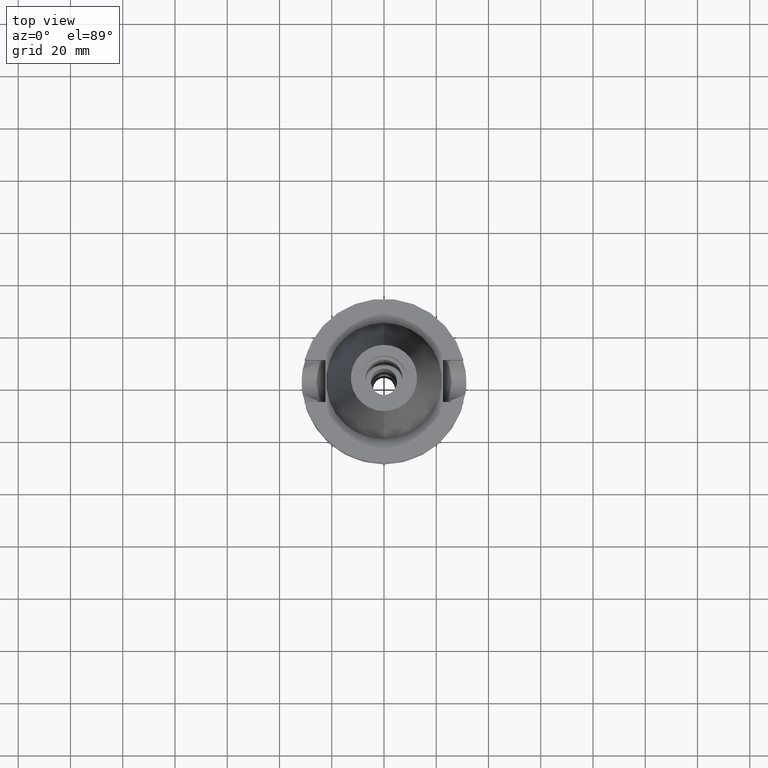
[diagram: clean part render]
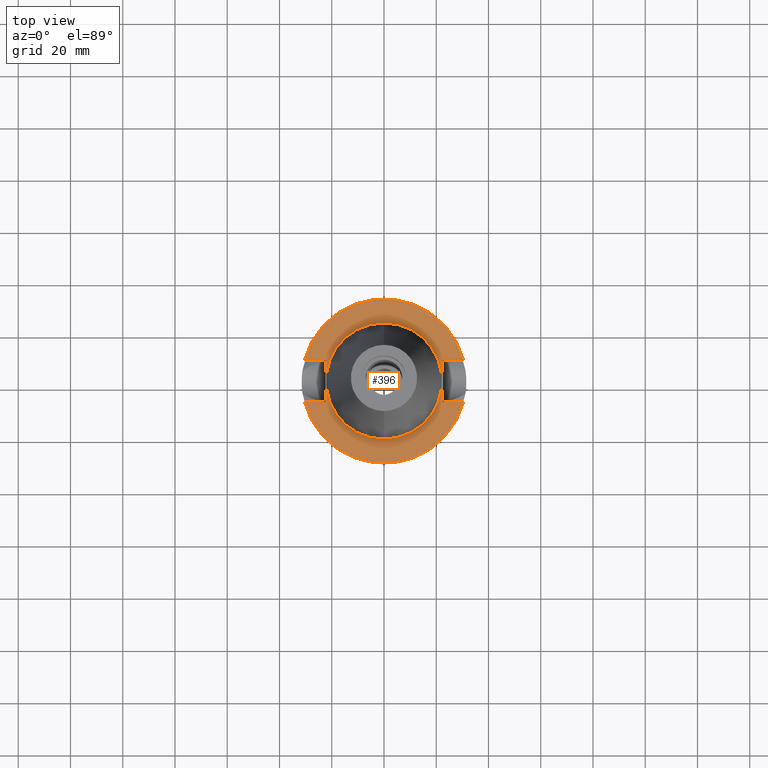
[diagram: same view with one face highlighted and labeled with its STEP entity id]
A machine part, top view. The second image highlights one B-rep face of the part: STEP entity #396.
In plain terms, the highlighted planar face has unit normal (0, 0, -1).
Its self-contained STEP definition (entity closure, byte-faithful):
#44 = ORIENTED_EDGE ( 'NONE', *, *, #3236, .F. ) ;
#79 = DIRECTION ( 'NONE',  ( 0.0000000000000000000, 0.0000000000000000000, 1.000000000000000000 ) ) ;
#85 = DIRECTION ( 'NONE',  ( 0.0000000000000000000, 0.0000000000000000000, -1.000000000000000000 ) ) ;
#111 = CARTESIAN_POINT ( 'NONE',  ( 0.0000000000000000000, 2.184402495638999836E-14, -2.000000000000000000 ) ) ;
#147 = ORIENTED_EDGE ( 'NONE', *, *, #776, .F. ) ;
#204 = VECTOR ( 'NONE', #2801, 1000.000000000000000 ) ;
#213 = VECTOR ( 'NONE', #728, 1000.000000000000000 ) ;
#353 = DIRECTION ( 'NONE',  ( 0.0000000000000000000, -1.000000000000000000, 0.0000000000000000000 ) ) ;
#396 = ADVANCED_FACE ( 'NONE', ( #2840, #611 ), #2281, .F. ) ;
#399 = EDGE_CURVE ( 'NONE', #1183, #1248, #708, .T. ) ;
#563 = AXIS2_PLACEMENT_3D ( 'NONE', #2775, #1332, #3304 ) ;
#611 = FACE_BOUND ( 'NONE', #3243, .T. ) ;
#633 = CARTESIAN_POINT ( 'NONE',  ( 0.0000000000000000000, 2.184402495638999836E-14, -2.000000000000000000 ) ) ;
#695 = VECTOR ( 'NONE', #3052, 1000.000000000000000 ) ;
#708 = CIRCLE ( 'NONE', #2419, 31.50000000000000000 ) ;
#728 = DIRECTION ( 'NONE',  ( 1.000000000000000000, 3.573249715389999860E-14, 0.0000000000000000000 ) ) ;
#776 = EDGE_CURVE ( 'NONE', #3167, #1708, #3395, .T. ) ;
#817 = ORIENTED_EDGE ( 'NONE', *, *, #2585, .F. ) ;
#881 = DIRECTION ( 'NONE',  ( 0.0000000000000000000, -1.000000000000000000, 0.0000000000000000000 ) ) ;
#950 = DIRECTION ( 'NONE',  ( 0.0000000000000000000, 1.000000000000000000, 0.0000000000000000000 ) ) ;
#977 = EDGE_CURVE ( 'NONE', #1312, #1248, #2633, .T. ) ;
#1016 = CARTESIAN_POINT ( 'NONE',  ( 0.0000000000000000000, 22.22500000000000142, -2.000000000000000000 ) ) ;
#1038 = AXIS2_PLACEMENT_3D ( 'NONE', #111, #1842, #2937 ) ;
#1183 = VERTEX_POINT ( 'NONE', #3413 ) ;
#1241 = CARTESIAN_POINT ( 'NONE',  ( 22.50000000000000000, -8.050000000000000711, -2.000000000000000000 ) ) ;
#1248 = VERTEX_POINT ( 'NONE', #1956 ) ;
#1307 = ORIENTED_EDGE ( 'NONE', *, *, #2188, .F. ) ;
#1312 = VERTEX_POINT ( 'NONE', #3162 ) ;
#1332 = DIRECTION ( 'NONE',  ( 0.0000000000000000000, 0.0000000000000000000, -1.000000000000000000 ) ) ;
#1340 = CARTESIAN_POINT ( 'NONE',  ( 30.45402272279000044, 8.050000000000000711, -2.000000000000000000 ) ) ;
#1385 = CARTESIAN_POINT ( 'NONE',  ( -22.50000000000000000, 8.050000000000000711, -2.000000000000000000 ) ) ;
#1386 = VECTOR ( 'NONE', #3341, 1000.000000000000000 ) ;
#1544 = ORIENTED_EDGE ( 'NONE', *, *, #2744, .F. ) ;
#1558 = DIRECTION ( 'NONE',  ( 1.000000000000000000, -3.506251283225999947E-14, 0.0000000000000000000 ) ) ;
#1610 = CARTESIAN_POINT ( 'NONE',  ( -22.50000000000000000, -8.050000000000000711, -2.000000000000000000 ) ) ;
#1663 = VERTEX_POINT ( 'NONE', #1340 ) ;
#1708 = VERTEX_POINT ( 'NONE', #3312 ) ;
#1726 = CARTESIAN_POINT ( 'NONE',  ( 0.0000000000000000000, 2.184402495638999836E-14, -2.000000000000000000 ) ) ;
#1842 = DIRECTION ( 'NONE',  ( 0.0000000000000000000, 0.0000000000000000000, 1.000000000000000000 ) ) ;
#1924 = AXIS2_PLACEMENT_3D ( 'NONE', #1726, #79, #950 ) ;
#1956 = CARTESIAN_POINT ( 'NONE',  ( -30.45402272279000044, -8.050000000000000711, -2.000000000000000000 ) ) ;
#2058 = ORIENTED_EDGE ( 'NONE', *, *, #2608, .T. ) ;
#2071 = CARTESIAN_POINT ( 'NONE',  ( 22.50000000000000000, -8.050000000000000711, -2.000000000000000000 ) ) ;
#2073 = EDGE_LOOP ( 'NONE', ( #2719, #2077, #817, #3517, #2058, #2440, #44, #1307 ) ) ;
#2077 = ORIENTED_EDGE ( 'NONE', *, *, #399, .F. ) ;
#2110 = CARTESIAN_POINT ( 'NONE',  ( 22.50000000000000000, 8.050000000000000711, -2.000000000000000000 ) ) ;
#2127 = CARTESIAN_POINT ( 'NONE',  ( 22.50000000000000000, 8.050000000000000711, -2.000000000000000000 ) ) ;
#2146 = CIRCLE ( 'NONE', #563, 31.50000000000000000 ) ;
#2154 = VECTOR ( 'NONE', #1558, 1000.000000000000000 ) ;
#2188 = EDGE_CURVE ( 'NONE', #1312, #2994, #3561, .T. ) ;
#2281 = PLANE ( 'NONE',  #3410 ) ;
#2328 = LINE ( 'NONE', #2110, #2154 ) ;
#2345 = CARTESIAN_POINT ( 'NONE',  ( -22.50000000000000000, 8.050000000000000711, -2.000000000000000000 ) ) ;
#2378 = CARTESIAN_POINT ( 'NONE',  ( -30.45402272279000044, 8.050000000000000711, -2.000000000000000000 ) ) ;
#2419 = AXIS2_PLACEMENT_3D ( 'NONE', #633, #85, #881 ) ;
#2437 = VECTOR ( 'NONE', #2511, 1000.000000000000000 ) ;
#2440 = ORIENTED_EDGE ( 'NONE', *, *, #3121, .F. ) ;
#2511 = DIRECTION ( 'NONE',  ( -1.000000000000000000, -3.550916904668000126E-14, 0.0000000000000000000 ) ) ;
#2559 = DIRECTION ( 'NONE',  ( 0.0000000000000000000, 0.0000000000000000000, -1.000000000000000000 ) ) ;
#2585 = EDGE_CURVE ( 'NONE', #2595, #1183, #3474, .T. ) ;
#2595 = VERTEX_POINT ( 'NONE', #2071 ) ;
#2608 = EDGE_CURVE ( 'NONE', #2613, #1663, #2328, .T. ) ;
#2613 = VERTEX_POINT ( 'NONE', #2127 ) ;
#2633 = LINE ( 'NONE', #3592, #695 ) ;
#2719 = ORIENTED_EDGE ( 'NONE', *, *, #977, .T. ) ;
#2744 = EDGE_CURVE ( 'NONE', #1708, #3167, #2807, .T. ) ;
#2775 = CARTESIAN_POINT ( 'NONE',  ( 0.0000000000000000000, 2.184402495638999836E-14, -2.000000000000000000 ) ) ;
#2801 = DIRECTION ( 'NONE',  ( 0.0000000000000000000, -1.000000000000000000, 0.0000000000000000000 ) ) ;
#2807 = CIRCLE ( 'NONE', #1038, 22.22500000000000142 ) ;
#2840 = FACE_OUTER_BOUND ( 'NONE', #2073, .T. ) ;
#2880 = CARTESIAN_POINT ( 'NONE',  ( 0.0000000000000000000, 1.200153863163999924E-14, -2.000000000000000000 ) ) ;
#2937 = DIRECTION ( 'NONE',  ( 0.0000000000000000000, -1.000000000000000000, 0.0000000000000000000 ) ) ;
#2994 = VERTEX_POINT ( 'NONE', #2345 ) ;
#3052 = DIRECTION ( 'NONE',  ( -1.000000000000000000, 3.550916904668000126E-14, 0.0000000000000000000 ) ) ;
#3121 = EDGE_CURVE ( 'NONE', #3370, #1663, #2146, .T. ) ;
#3162 = CARTESIAN_POINT ( 'NONE',  ( -22.50000000000000000, -8.050000000000000711, -2.000000000000000000 ) ) ;
#3167 = VERTEX_POINT ( 'NONE', #1016 ) ;
#3236 = EDGE_CURVE ( 'NONE', #2994, #3370, #3371, .T. ) ;
#3243 = EDGE_LOOP ( 'NONE', ( #147, #1544 ) ) ;
#3304 = DIRECTION ( 'NONE',  ( 0.0000000000000000000, 1.000000000000000000, 0.0000000000000000000 ) ) ;
#3312 = CARTESIAN_POINT ( 'NONE',  ( 0.0000000000000000000, -22.22500000000000142, -2.000000000000000000 ) ) ;
#3341 = DIRECTION ( 'NONE',  ( 0.0000000000000000000, 1.000000000000000000, 0.0000000000000000000 ) ) ;
#3364 = CARTESIAN_POINT ( 'NONE',  ( 22.50000000000000000, 8.050000000000000711, -2.000000000000000000 ) ) ;
#3370 = VERTEX_POINT ( 'NONE', #2378 ) ;
#3371 = LINE ( 'NONE', #1385, #2437 ) ;
#3395 = CIRCLE ( 'NONE', #1924, 22.22500000000000142 ) ;
#3410 = AXIS2_PLACEMENT_3D ( 'NONE', #2880, #2559, #353 ) ;
#3413 = CARTESIAN_POINT ( 'NONE',  ( 30.45402272279000044, -8.050000000000000711, -2.000000000000000000 ) ) ;
#3474 = LINE ( 'NONE', #1241, #213 ) ;
#3517 = ORIENTED_EDGE ( 'NONE', *, *, #3645, .F. ) ;
#3561 = LINE ( 'NONE', #1610, #1386 ) ;
#3592 = CARTESIAN_POINT ( 'NONE',  ( -22.50000000000000000, -8.050000000000000711, -2.000000000000000000 ) ) ;
#3598 = LINE ( 'NONE', #3364, #204 ) ;
#3645 = EDGE_CURVE ( 'NONE', #2613, #2595, #3598, .T. ) ;